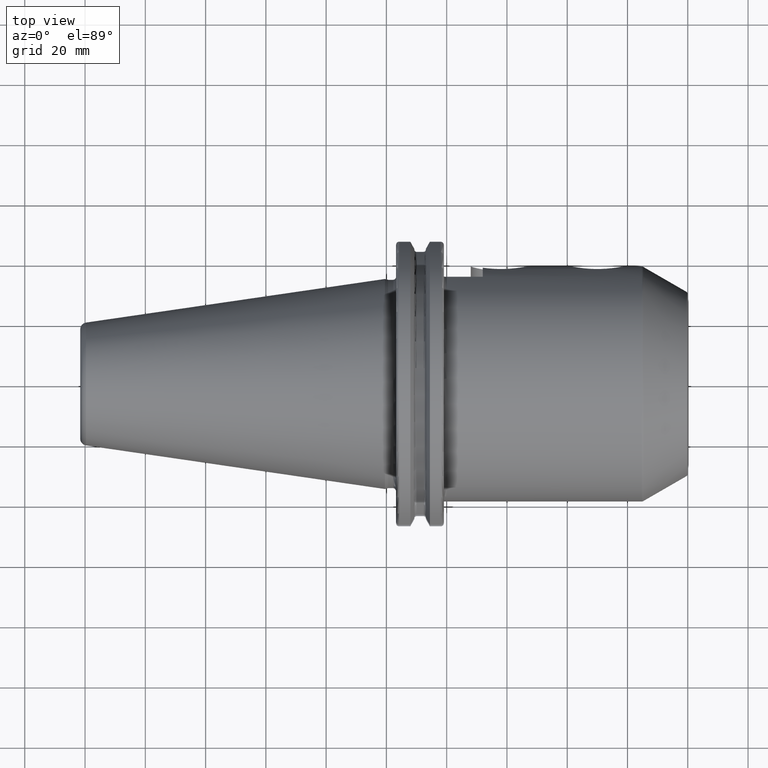
[diagram: clean part render]
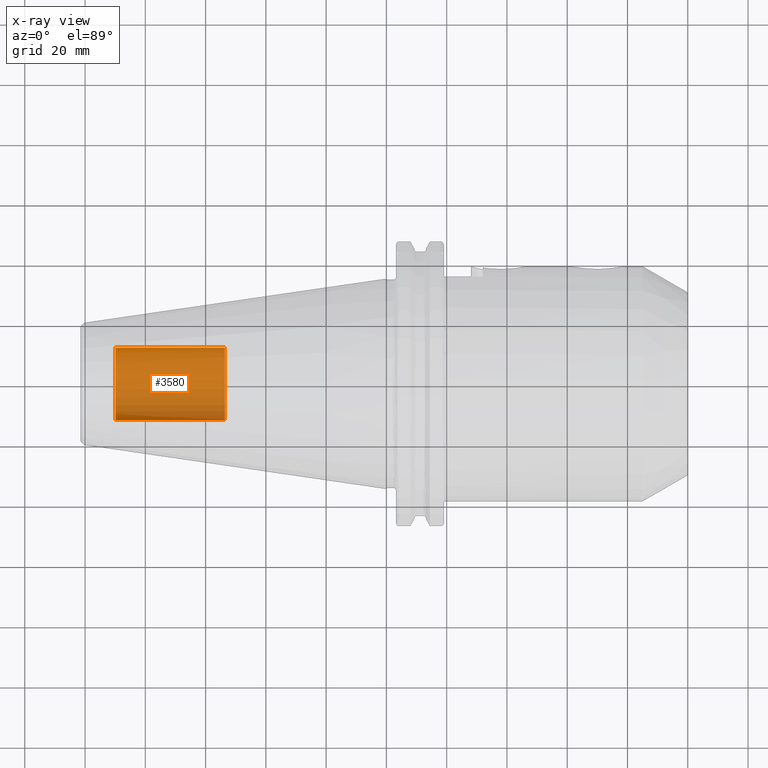
[diagram: x-ray — body ghosted, one internal face saturated and labeled with its STEP entity id]
A machine part, top view, then the same camera in x-ray: the body is ghosted and one INTERNAL B-rep face — a face not visible from any outside direction — is saturated and labeled: STEP entity #3580.
In plain terms, the highlighted cylindrical surface (edge-blend (fillet) strip) has radius 12.0032 mm, axis along (1, 0, 0).
Its self-contained STEP definition (entity closure, byte-faithful):
#3515=CARTESIAN_POINT('',(-8.985E1,0.E0,0.E0));
#3516=DIRECTION('',(-1.E0,0.E0,0.E0));
#3517=DIRECTION('',(0.E0,1.E0,0.E0));
#3518=AXIS2_PLACEMENT_3D('',#3515,#3516,#3517);
#3520=DIRECTION('',(1.E0,0.E0,0.E0));
#3521=VECTOR('',#3520,3.625E1);
#3522=CARTESIAN_POINT('',(-8.985E1,-1.200325E1,0.E0));
#3523=LINE('',#3522,#3521);
#3529=DIRECTION('',(1.E0,0.E0,0.E0));
#3530=VECTOR('',#3529,3.625E1);
#3531=CARTESIAN_POINT('',(-8.985E1,1.200325E1,0.E0));
#3532=LINE('',#3531,#3530);
#3538=CARTESIAN_POINT('',(-5.36E1,0.E0,0.E0));
#3539=DIRECTION('',(1.E0,0.E0,0.E0));
#3540=DIRECTION('',(0.E0,-1.E0,0.E0));
#3541=AXIS2_PLACEMENT_3D('',#3538,#3539,#3540);
#3553=CARTESIAN_POINT('',(-8.985E1,1.200325E1,0.E0));
#3554=CARTESIAN_POINT('',(-8.985E1,-1.200325E1,0.E0));
#3555=VERTEX_POINT('',#3553);
#3556=VERTEX_POINT('',#3554);
#3557=CARTESIAN_POINT('',(-5.36E1,1.200325E1,0.E0));
#3558=CARTESIAN_POINT('',(-5.36E1,-1.200325E1,0.E0));
#3559=VERTEX_POINT('',#3557);
#3560=VERTEX_POINT('',#3558);
#3565=CARTESIAN_POINT('',(-8.985E1,0.E0,0.E0));
#3566=DIRECTION('',(1.E0,0.E0,0.E0));
#3567=DIRECTION('',(0.E0,1.E0,0.E0));
#3568=AXIS2_PLACEMENT_3D('',#3565,#3566,#3567);
#3569=CYLINDRICAL_SURFACE('',#3568,1.200325E1);
#3571=ORIENTED_EDGE('',*,*,#3570,.T.);
#3573=ORIENTED_EDGE('',*,*,#3572,.T.);
#3575=ORIENTED_EDGE('',*,*,#3574,.T.);
#3577=ORIENTED_EDGE('',*,*,#3576,.F.);
#3578=EDGE_LOOP('',(#3571,#3573,#3575,#3577));
#3579=FACE_OUTER_BOUND('',#3578,.F.);
#3580=ADVANCED_FACE('',(#3579),#3569,.T.);
#3519=CIRCLE('',#3518,1.200325E1);
#3542=CIRCLE('',#3541,1.200325E1);
#3570=EDGE_CURVE('',#3555,#3556,#3519,.T.);
#3572=EDGE_CURVE('',#3556,#3560,#3523,.T.);
#3574=EDGE_CURVE('',#3560,#3559,#3542,.T.);
#3576=EDGE_CURVE('',#3555,#3559,#3532,.T.);